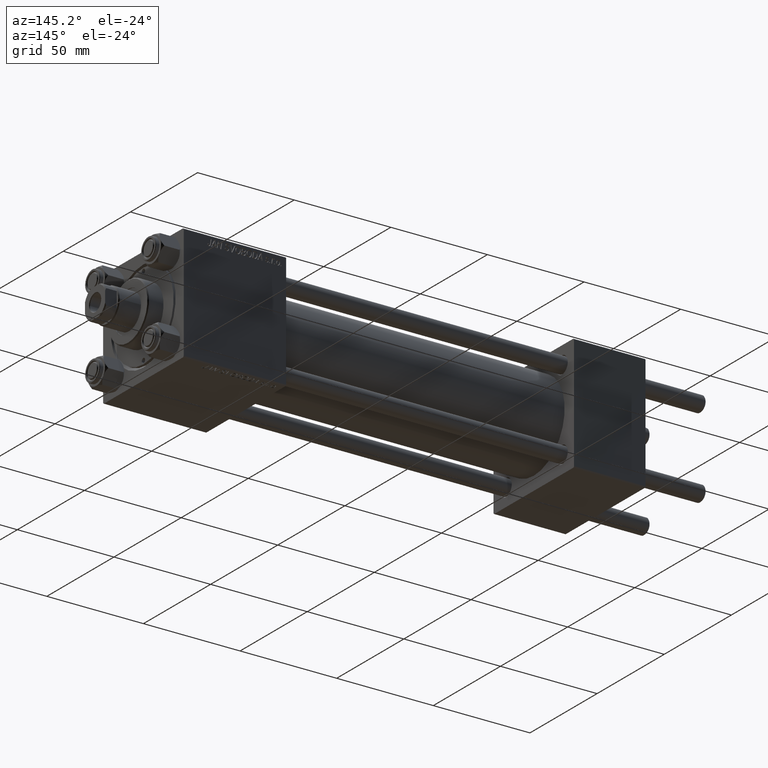
[diagram: clean part render]
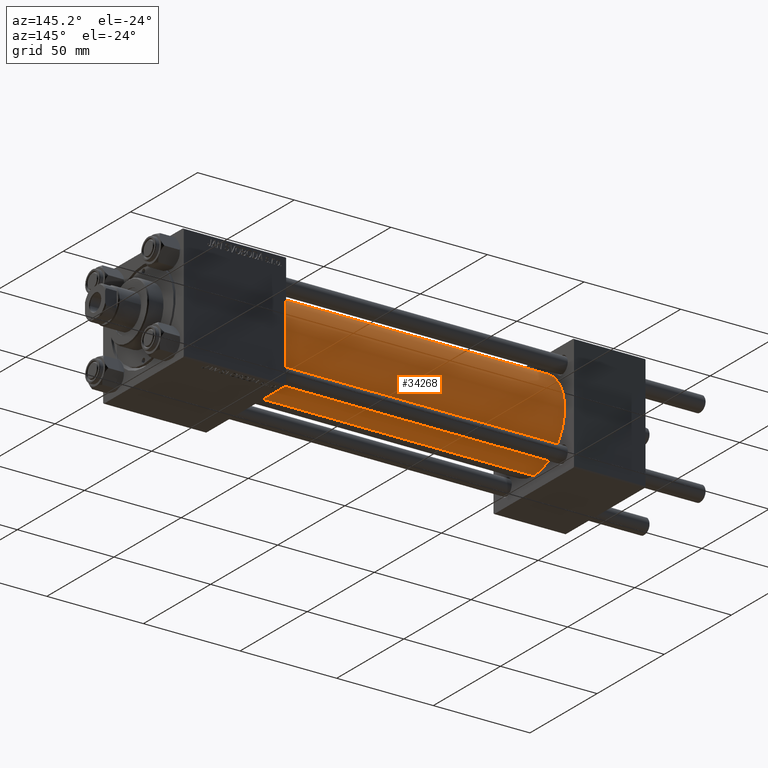
[diagram: same view with one face highlighted and labeled with its STEP entity id]
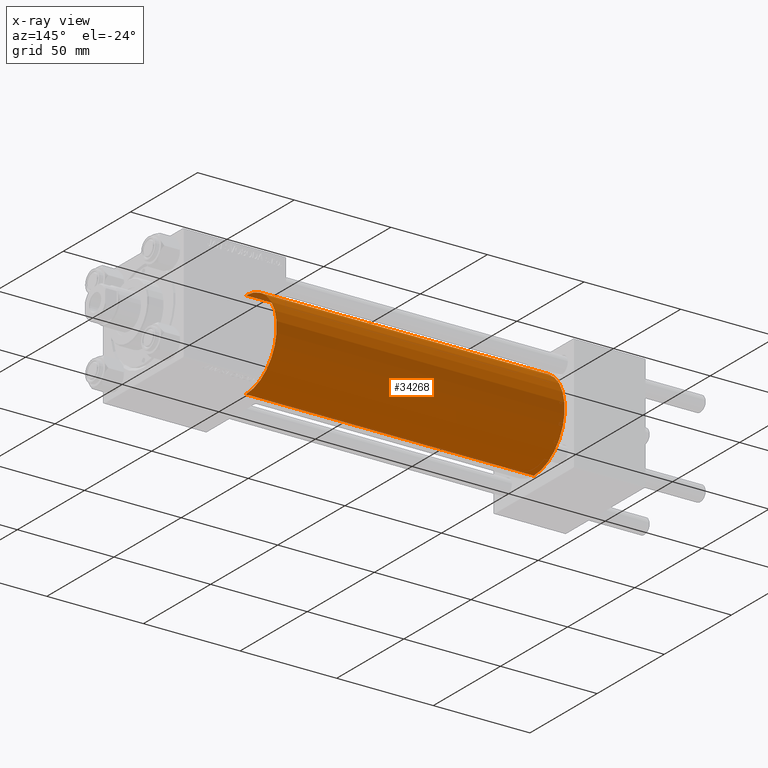
[diagram: x-ray of the same camera — body ghosted, the highlighted face saturated]
A machine part, auxiliary view. The second image highlights one B-rep face of the part: STEP entity #34268.
The next image is the same camera in x-ray: the body ghosted, the highlighted face saturated — about 0% of this face is hidden behind the body in this view.
In plain terms, the highlighted cylindrical surface (partial cylindrical patch) has radius 23 mm, axis along (-1, -0, -0).
Its self-contained STEP definition (entity closure, byte-faithful):
#663 = DIRECTION ( 'NONE',  ( 1.000000000000000000, 0.000000000000000000, 0.000000000000000000 ) ) ;
#1048 = FACE_OUTER_BOUND ( 'NONE', #29841, .T. ) ;
#1832 = VECTOR ( 'NONE', #9527, 1000.000000000000000 ) ;
#2541 = CARTESIAN_POINT ( 'NONE',  ( 37.00000000000000711, 0.000000000000000000, 23.00000000000000000 ) ) ;
#3813 = CARTESIAN_POINT ( 'NONE',  ( 186.0000000000000000, 0.000000000000000000, 23.00000000000000000 ) ) ;
#5839 = DIRECTION ( 'NONE',  ( 1.000000000000000000, -0.000000000000000000, 0.000000000000000000 ) ) ;
#6897 = CARTESIAN_POINT ( 'NONE',  ( 37.00000000000000711, 2.816687638038912352E-15, -23.00000000000000000 ) ) ;
#7002 = AXIS2_PLACEMENT_3D ( 'NONE', #8622, #5839, #20487 ) ;
#8470 = VERTEX_POINT ( 'NONE', #49462 ) ;
#8622 = CARTESIAN_POINT ( 'NONE',  ( 37.00000000000000711, 0.000000000000000000, 0.000000000000000000 ) ) ;
#9527 = DIRECTION ( 'NONE',  ( -1.000000000000000000, -0.000000000000000000, -0.000000000000000000 ) ) ;
#12477 = EDGE_CURVE ( 'NONE', #20026, #26908, #32308, .T. ) ;
#12519 = ORIENTED_EDGE ( 'NONE', *, *, #16523, .F. ) ;
#14334 = LINE ( 'NONE', #36862, #47288 ) ;
#15581 = AXIS2_PLACEMENT_3D ( 'NONE', #20785, #663, #44350 ) ;
#15687 = VERTEX_POINT ( 'NONE', #6897 ) ;
#16460 = CYLINDRICAL_SURFACE ( 'NONE', #29838, 23.00000000000000000 ) ;
#16523 = EDGE_CURVE ( 'NONE', #8470, #20026, #22875, .T. ) ;
#20026 = VERTEX_POINT ( 'NONE', #33669 ) ;
#20487 = DIRECTION ( 'NONE',  ( 0.000000000000000000, 0.000000000000000000, 1.000000000000000000 ) ) ;
#20785 = CARTESIAN_POINT ( 'NONE',  ( 186.0000000000000000, 0.000000000000000000, 0.000000000000000000 ) ) ;
#22622 = EDGE_CURVE ( 'NONE', #8470, #15687, #14334, .T. ) ;
#22875 = CIRCLE ( 'NONE', #15581, 23.00000000000000000 ) ;
#26908 = VERTEX_POINT ( 'NONE', #2541 ) ;
#28879 = EDGE_CURVE ( 'NONE', #15687, #26908, #46580, .T. ) ;
#29838 = AXIS2_PLACEMENT_3D ( 'NONE', #47338, #41031, #40523 ) ;
#29841 = EDGE_LOOP ( 'NONE', ( #12519, #46206, #49510, #41150 ) ) ;
#32308 = LINE ( 'NONE', #3813, #1832 ) ;
#33065 = DIRECTION ( 'NONE',  ( -1.000000000000000000, -0.000000000000000000, -0.000000000000000000 ) ) ;
#33669 = CARTESIAN_POINT ( 'NONE',  ( 186.0000000000000000, 0.000000000000000000, 23.00000000000000000 ) ) ;
#34268 = ADVANCED_FACE ( 'NONE', ( #1048 ), #16460, .T. ) ;
#36862 = CARTESIAN_POINT ( 'NONE',  ( 186.0000000000000000, 2.816687638038912352E-15, -23.00000000000000000 ) ) ;
#40523 = DIRECTION ( 'NONE',  ( 0.000000000000000000, 0.000000000000000000, 1.000000000000000000 ) ) ;
#41031 = DIRECTION ( 'NONE',  ( -1.000000000000000000, -0.000000000000000000, -0.000000000000000000 ) ) ;
#41150 = ORIENTED_EDGE ( 'NONE', *, *, #12477, .F. ) ;
#44350 = DIRECTION ( 'NONE',  ( 0.000000000000000000, 0.000000000000000000, -1.000000000000000000 ) ) ;
#46206 = ORIENTED_EDGE ( 'NONE', *, *, #22622, .T. ) ;
#46580 = CIRCLE ( 'NONE', #7002, 23.00000000000000000 ) ;
#47288 = VECTOR ( 'NONE', #33065, 1000.000000000000000 ) ;
#47338 = CARTESIAN_POINT ( 'NONE',  ( 186.0000000000000000, 0.000000000000000000, 0.000000000000000000 ) ) ;
#49462 = CARTESIAN_POINT ( 'NONE',  ( 186.0000000000000000, 2.816687638038912352E-15, -23.00000000000000000 ) ) ;
#49510 = ORIENTED_EDGE ( 'NONE', *, *, #28879, .T. ) ;